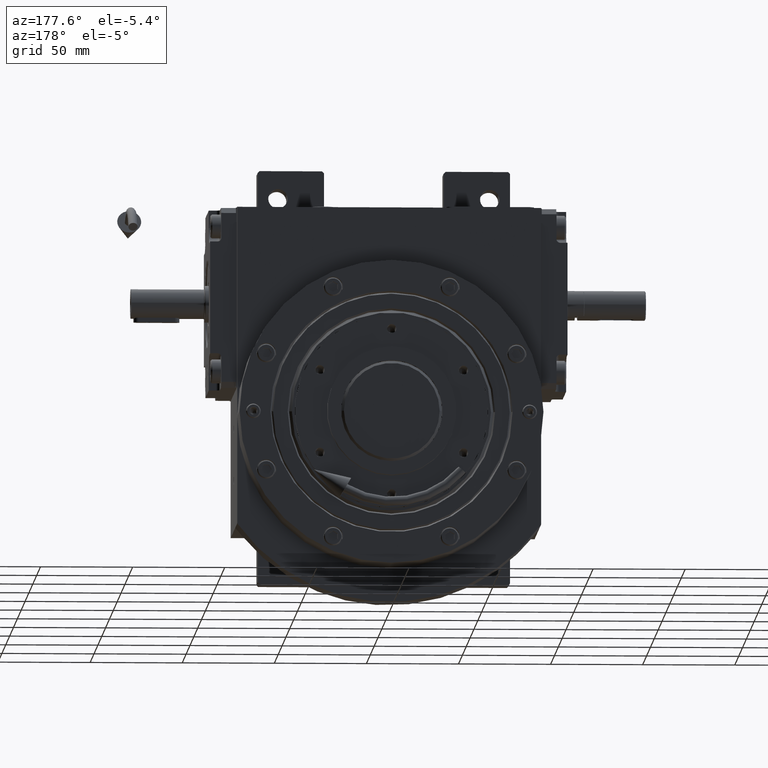
[diagram: clean part render]
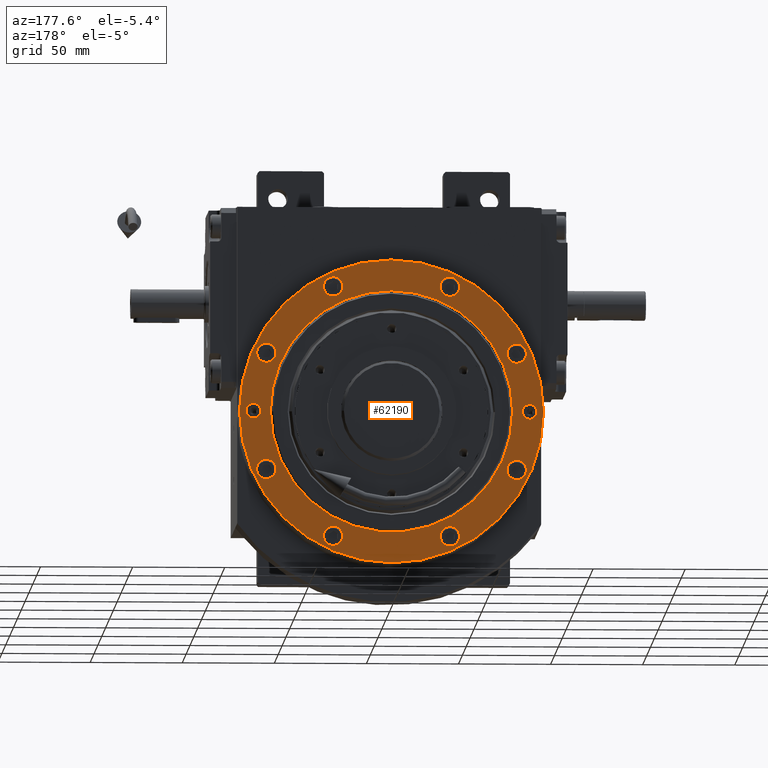
[diagram: same view with one face highlighted and labeled with its STEP entity id]
A machine part, auxiliary view. The second image highlights one B-rep face of the part: STEP entity #62190.
In plain terms, the highlighted planar face has unit normal (0, 1, 0).
Its self-contained STEP definition (entity closure, byte-faithful):
#571 = EDGE_CURVE ( 'NONE', #4153, #9652, #63248, .T. ) ;
#1590 = DIRECTION ( 'NONE',  ( 1.000000000000000000, 0.000000000000000000, 0.000000000000000000 ) ) ;
#1796 = AXIS2_PLACEMENT_3D ( 'NONE', #22581, #27122, #13189 ) ;
#1919 = VERTEX_POINT ( 'NONE', #28391 ) ;
#1932 = AXIS2_PLACEMENT_3D ( 'NONE', #59533, #20772, #59864 ) ;
#2515 = CARTESIAN_POINT ( 'NONE',  ( 2.060573933704000491E-13, 4.440892098501000776E-13, 30.49999232216999445 ) ) ;
#2585 = CARTESIAN_POINT ( 'NONE',  ( -67.97308402775001923, 31.69636963055000223, 30.49999999999999289 ) ) ;
#3320 = CARTESIAN_POINT ( 'NONE',  ( 78.99999999999998579, 0.000000000000000000, 30.49999999999999289 ) ) ;
#3531 = ORIENTED_EDGE ( 'NONE', *, *, #48494, .F. ) ;
#3731 = EDGE_CURVE ( 'NONE', #60343, #55515, #24535, .T. ) ;
#3758 = AXIS2_PLACEMENT_3D ( 'NONE', #53569, #24162, #47776 ) ;
#4153 = VERTEX_POINT ( 'NONE', #3320 ) ;
#4349 = CIRCLE ( 'NONE', #5359, 65.72795184286999870 ) ;
#4367 = DIRECTION ( 'NONE',  ( -1.000000000000000000, 0.000000000000000000, 0.000000000000000000 ) ) ;
#4375 = CARTESIAN_POINT ( 'NONE',  ( 67.97308402774999081, -31.69636963055000223, 30.49999999999999289 ) ) ;
#4450 = EDGE_CURVE ( 'NONE', #35947, #5916, #28706, .T. ) ;
#4574 = VERTEX_POINT ( 'NONE', #21819 ) ;
#4586 = VERTEX_POINT ( 'NONE', #38824 ) ;
#4595 = EDGE_LOOP ( 'NONE', ( #10971, #3531 ) ) ;
#4846 = VERTEX_POINT ( 'NONE', #14425 ) ;
#5187 = FACE_OUTER_BOUND ( 'NONE', #41291, .T. ) ;
#5359 = AXIS2_PLACEMENT_3D ( 'NONE', #2515, #6736, #37172 ) ;
#5802 = CARTESIAN_POINT ( 'NONE',  ( -71.00000000000001421, 1.521575012437008940E-14, 30.49999999999999289 ) ) ;
#5916 = VERTEX_POINT ( 'NONE', #32955 ) ;
#6314 = EDGE_LOOP ( 'NONE', ( #10700, #24241 ) ) ;
#6463 = DIRECTION ( 'NONE',  ( -1.000000000000000000, 0.000000000000000000, 0.000000000000000000 ) ) ;
#6736 = DIRECTION ( 'NONE',  ( 0.000000000000000000, 0.000000000000000000, -1.000000000000000000 ) ) ;
#7018 = DIRECTION ( 'NONE',  ( 1.000000000000000000, 0.000000000000000000, 0.000000000000000000 ) ) ;
#7071 = EDGE_CURVE ( 'NONE', #38816, #4846, #4349, .T. ) ;
#7467 = DIRECTION ( 'NONE',  ( 0.000000000000000000, 0.000000000000000000, 1.000000000000000000 ) ) ;
#8049 = CIRCLE ( 'NONE', #61723, 5.250000000000004441 ) ;
#8883 = DIRECTION ( 'NONE',  ( 0.000000000000000000, 0.000000000000000000, 1.000000000000000000 ) ) ;
#9064 = AXIS2_PLACEMENT_3D ( 'NONE', #11022, #41745, #30772 ) ;
#9546 = ORIENTED_EDGE ( 'NONE', *, *, #32012, .F. ) ;
#9652 = VERTEX_POINT ( 'NONE', #37978 ) ;
#9702 = AXIS2_PLACEMENT_3D ( 'NONE', #21580, #35188, #50978 ) ;
#9800 = CIRCLE ( 'NONE', #56249, 65.72795184286999870 ) ;
#9981 = CIRCLE ( 'NONE', #3758, 5.249999999999997335 ) ;
#10700 = ORIENTED_EDGE ( 'NONE', *, *, #18929, .F. ) ;
#10861 = ORIENTED_EDGE ( 'NONE', *, *, #58784, .T. ) ;
#10896 = AXIS2_PLACEMENT_3D ( 'NONE', #50110, #54974, #1590 ) ;
#10971 = ORIENTED_EDGE ( 'NONE', *, *, #44783, .F. ) ;
#11022 = CARTESIAN_POINT ( 'NONE',  ( -75.00000000000001421, 1.423604886319003288E-14, 30.49999999999999289 ) ) ;
#11082 = ORIENTED_EDGE ( 'NONE', *, *, #31995, .T. ) ;
#11084 = AXIS2_PLACEMENT_3D ( 'NONE', #53503, #8883, #27692 ) ;
#11141 = CIRCLE ( 'NONE', #9064, 4.000000000000003553 ) ;
#11604 = VERTEX_POINT ( 'NONE', #35209 ) ;
#11732 = VERTEX_POINT ( 'NONE', #34889 ) ;
#12063 = DIRECTION ( 'NONE',  ( 0.000000000000000000, 0.000000000000000000, 1.000000000000000000 ) ) ;
#12299 = AXIS2_PLACEMENT_3D ( 'NONE', #2585, #62074, #61430 ) ;
#12617 = CARTESIAN_POINT ( 'NONE',  ( 67.97308402774999081, -31.69636963055000223, 30.49999999999999289 ) ) ;
#12978 = ORIENTED_EDGE ( 'NONE', *, *, #29495, .T. ) ;
#13011 = CARTESIAN_POINT ( 'NONE',  ( 65.72795184286999870, 1.310051197827999923E-14, 30.49999232216999445 ) ) ;
#13189 = DIRECTION ( 'NONE',  ( -1.000000000000000000, 0.000000000000000000, 0.000000000000000000 ) ) ;
#13368 = VERTEX_POINT ( 'NONE', #62691 ) ;
#13506 = CARTESIAN_POINT ( 'NONE',  ( 36.94636963055000223, 67.97308402775000502, 30.49999999999999289 ) ) ;
#13550 = ORIENTED_EDGE ( 'NONE', *, *, #4450, .F. ) ;
#13643 = CARTESIAN_POINT ( 'NONE',  ( 31.69636963055000223, 67.97308402775000502, 30.49999999999999289 ) ) ;
#13800 = CIRCLE ( 'NONE', #51998, 5.250000000000004441 ) ;
#14072 = DIRECTION ( 'NONE',  ( 1.000000000000000000, 0.000000000000000000, 0.000000000000000000 ) ) ;
#14425 = CARTESIAN_POINT ( 'NONE',  ( -65.72795184286999870, 0.000000000000000000, 30.49999232216999445 ) ) ;
#14606 = FACE_BOUND ( 'NONE', #61156, .T. ) ;
#15225 = FACE_BOUND ( 'NONE', #26595, .T. ) ;
#15844 = EDGE_CURVE ( 'NONE', #4574, #11604, #47202, .T. ) ;
#16118 = EDGE_CURVE ( 'NONE', #27712, #13368, #11141, .T. ) ;
#16428 = CARTESIAN_POINT ( 'NONE',  ( 2.060573933704000491E-13, -65.72795184287261350, 30.49999232216999445 ) ) ;
#16825 = DIRECTION ( 'NONE',  ( -1.000000000000000000, 0.000000000000000000, 0.000000000000000000 ) ) ;
#17142 = CARTESIAN_POINT ( 'NONE',  ( -31.69636963055000223, -67.97308402775000502, 30.49999999999999289 ) ) ;
#17309 = EDGE_CURVE ( 'NONE', #18433, #55414, #53372, .T. ) ;
#17496 = ORIENTED_EDGE ( 'NONE', *, *, #15844, .F. ) ;
#18433 = VERTEX_POINT ( 'NONE', #42248 ) ;
#18819 = FACE_BOUND ( 'NONE', #62537, .T. ) ;
#18929 = EDGE_CURVE ( 'NONE', #1919, #33132, #54611, .T. ) ;
#18964 = CARTESIAN_POINT ( 'NONE',  ( -82.50000000000001421, 2.020633851199993078E-14, 30.49999999999999289 ) ) ;
#19123 = FACE_BOUND ( 'NONE', #46609, .T. ) ;
#19325 = AXIS2_PLACEMENT_3D ( 'NONE', #42769, #42467, #62150 ) ;
#19521 = EDGE_CURVE ( 'NONE', #33132, #1919, #26680, .T. ) ;
#19931 = AXIS2_PLACEMENT_3D ( 'NONE', #29598, #24754, #33506 ) ;
#20069 = FACE_BOUND ( 'NONE', #52133, .T. ) ;
#20210 = CARTESIAN_POINT ( 'NONE',  ( 82.49999999999998579, -1.010300241903009221E-14, 30.49999999999999289 ) ) ;
#20321 = CARTESIAN_POINT ( 'NONE',  ( -75.00000000000001421, 1.423604886319003288E-14, 30.49999999999999289 ) ) ;
#20772 = DIRECTION ( 'NONE',  ( 0.000000000000000000, 0.000000000000000000, 1.000000000000000000 ) ) ;
#21580 = CARTESIAN_POINT ( 'NONE',  ( 74.99999999999998579, 0.000000000000000000, 30.49999999999999289 ) ) ;
#21633 = ORIENTED_EDGE ( 'NONE', *, *, #7071, .T. ) ;
#21651 = ORIENTED_EDGE ( 'NONE', *, *, #29120, .F. ) ;
#21819 = CARTESIAN_POINT ( 'NONE',  ( -26.44636963054999867, -67.97308402775000502, 30.49999999999999289 ) ) ;
#22295 = CARTESIAN_POINT ( 'NONE',  ( -73.22308402774999081, -31.69636963055000223, 30.49999999999999289 ) ) ;
#22581 = CARTESIAN_POINT ( 'NONE',  ( -67.97308402775001923, 31.69636963055000223, 30.49999999999999289 ) ) ;
#23581 = AXIS2_PLACEMENT_3D ( 'NONE', #33510, #28660, #4367 ) ;
#23658 = DIRECTION ( 'NONE',  ( 0.000000000000000000, 0.000000000000000000, 1.000000000000000000 ) ) ;
#23872 = CIRCLE ( 'NONE', #28130, 5.250000000000004441 ) ;
#23887 = CARTESIAN_POINT ( 'NONE',  ( -67.97308402775001923, -31.69636963055000223, 30.49999999999999289 ) ) ;
#24162 = DIRECTION ( 'NONE',  ( 0.000000000000000000, 0.000000000000000000, 1.000000000000000000 ) ) ;
#24241 = ORIENTED_EDGE ( 'NONE', *, *, #19521, .F. ) ;
#24535 = CIRCLE ( 'NONE', #11084, 82.50000000000000000 ) ;
#24754 = DIRECTION ( 'NONE',  ( 0.000000000000000000, 0.000000000000000000, -1.000000000000000000 ) ) ;
#24942 = FACE_BOUND ( 'NONE', #4595, .T. ) ;
#25053 = ORIENTED_EDGE ( 'NONE', *, *, #51846, .F. ) ;
#25215 = EDGE_LOOP ( 'NONE', ( #52869, #10861 ) ) ;
#25220 = EDGE_CURVE ( 'NONE', #37267, #43129, #8049, .T. ) ;
#25505 = CARTESIAN_POINT ( 'NONE',  ( 2.060573933704000491E-13, 4.440892098501000776E-13, 30.49999232216999445 ) ) ;
#26074 = EDGE_CURVE ( 'NONE', #46502, #40876, #58639, .T. ) ;
#26137 = CARTESIAN_POINT ( 'NONE',  ( 0.000000000000000000, 0.000000000000000000, 30.49999999999999289 ) ) ;
#26458 = DIRECTION ( 'NONE',  ( 0.000000000000000000, 0.000000000000000000, -1.000000000000000000 ) ) ;
#26575 = AXIS2_PLACEMENT_3D ( 'NONE', #58660, #44441, #14072 ) ;
#26595 = EDGE_LOOP ( 'NONE', ( #47922, #9546 ) ) ;
#26680 = CIRCLE ( 'NONE', #23581, 5.249999999999997335 ) ;
#27122 = DIRECTION ( 'NONE',  ( 0.000000000000000000, 0.000000000000000000, 1.000000000000000000 ) ) ;
#27692 = DIRECTION ( 'NONE',  ( -1.000000000000000000, 0.000000000000000000, 0.000000000000000000 ) ) ;
#27712 = VERTEX_POINT ( 'NONE', #5802 ) ;
#28130 = AXIS2_PLACEMENT_3D ( 'NONE', #4375, #43828, #63519 ) ;
#28135 = DIRECTION ( 'NONE',  ( -1.000000000000000000, 0.000000000000000000, 0.000000000000000000 ) ) ;
#28181 = CARTESIAN_POINT ( 'NONE',  ( 31.69636963055000223, -67.97308402775000502, 30.49999999999999289 ) ) ;
#28391 = CARTESIAN_POINT ( 'NONE',  ( -26.44636963054999867, 67.97308402775000502, 30.49999999999999289 ) ) ;
#28660 = DIRECTION ( 'NONE',  ( 0.000000000000000000, 0.000000000000000000, 1.000000000000000000 ) ) ;
#28706 = CIRCLE ( 'NONE', #42865, 5.250000000000000888 ) ;
#29037 = CIRCLE ( 'NONE', #37311, 4.000000000000003553 ) ;
#29120 = EDGE_CURVE ( 'NONE', #11604, #4574, #61995, .T. ) ;
#29370 = DIRECTION ( 'NONE',  ( 1.000000000000000000, 0.000000000000000000, 0.000000000000000000 ) ) ;
#29495 = EDGE_CURVE ( 'NONE', #55515, #60343, #35221, .T. ) ;
#29598 = CARTESIAN_POINT ( 'NONE',  ( 74.99999999999998579, 0.000000000000000000, 30.49999999999999289 ) ) ;
#29719 = DIRECTION ( 'NONE',  ( 1.000000000000000000, 0.000000000000000000, 0.000000000000000000 ) ) ;
#30117 = FACE_BOUND ( 'NONE', #25215, .T. ) ;
#30479 = ORIENTED_EDGE ( 'NONE', *, *, #16118, .T. ) ;
#30700 = AXIS2_PLACEMENT_3D ( 'NONE', #40912, #45437, #54799 ) ;
#30772 = DIRECTION ( 'NONE',  ( 1.000000000000000000, 0.000000000000000000, 0.000000000000000000 ) ) ;
#31394 = DIRECTION ( 'NONE',  ( 0.000000000000000000, 0.000000000000000000, 1.000000000000000000 ) ) ;
#31916 = CIRCLE ( 'NONE', #12299, 5.250000000000004441 ) ;
#31995 = EDGE_CURVE ( 'NONE', #48316, #38816, #9800, .T. ) ;
#32012 = EDGE_CURVE ( 'NONE', #55414, #18433, #53152, .T. ) ;
#32238 = VERTEX_POINT ( 'NONE', #13506 ) ;
#32351 = DIRECTION ( 'NONE',  ( 0.000000000000000000, 0.000000000000000000, 1.000000000000000000 ) ) ;
#32464 = ORIENTED_EDGE ( 'NONE', *, *, #62397, .F. ) ;
#32955 = CARTESIAN_POINT ( 'NONE',  ( 36.94636963055000223, -67.97308402775000502, 30.49999999999999289 ) ) ;
#33132 = VERTEX_POINT ( 'NONE', #52703 ) ;
#33154 = CIRCLE ( 'NONE', #41410, 5.250000000000000888 ) ;
#33506 = DIRECTION ( 'NONE',  ( 1.000000000000000000, 0.000000000000000000, 0.000000000000000000 ) ) ;
#33510 = CARTESIAN_POINT ( 'NONE',  ( -31.69636963055000223, 67.97308402775000502, 30.49999999999999289 ) ) ;
#33692 = EDGE_CURVE ( 'NONE', #5916, #35947, #9981, .T. ) ;
#33988 = EDGE_LOOP ( 'NONE', ( #37883, #13550 ) ) ;
#34299 = EDGE_LOOP ( 'NONE', ( #48809, #32464 ) ) ;
#34889 = CARTESIAN_POINT ( 'NONE',  ( 62.72308402774998370, -31.69636963055000223, 30.49999999999999289 ) ) ;
#34971 = FACE_BOUND ( 'NONE', #40044, .T. ) ;
#35188 = DIRECTION ( 'NONE',  ( 0.000000000000000000, 0.000000000000000000, -1.000000000000000000 ) ) ;
#35209 = CARTESIAN_POINT ( 'NONE',  ( -36.94636963055000223, -67.97308402775000502, 30.49999999999999289 ) ) ;
#35221 = CIRCLE ( 'NONE', #44518, 82.50000000000000000 ) ;
#35711 = CIRCLE ( 'NONE', #40880, 5.250000000000004441 ) ;
#35947 = VERTEX_POINT ( 'NONE', #47165 ) ;
#37172 = DIRECTION ( 'NONE',  ( 1.000000000000000000, 0.000000000000000000, 0.000000000000000000 ) ) ;
#37267 = VERTEX_POINT ( 'NONE', #22295 ) ;
#37269 = DIRECTION ( 'NONE',  ( 1.000000000000000000, 0.000000000000000000, 0.000000000000000000 ) ) ;
#37311 = AXIS2_PLACEMENT_3D ( 'NONE', #20321, #26458, #40057 ) ;
#37833 = DIRECTION ( 'NONE',  ( 0.000000000000000000, 0.000000000000000000, 1.000000000000000000 ) ) ;
#37883 = ORIENTED_EDGE ( 'NONE', *, *, #33692, .F. ) ;
#37978 = CARTESIAN_POINT ( 'NONE',  ( 70.99999999999998579, 0.000000000000000000, 30.49999999999999289 ) ) ;
#38202 = DIRECTION ( 'NONE',  ( -1.000000000000000000, 0.000000000000000000, 0.000000000000000000 ) ) ;
#38542 = PLANE ( 'NONE',  #10896 ) ;
#38816 = VERTEX_POINT ( 'NONE', #16428 ) ;
#38824 = CARTESIAN_POINT ( 'NONE',  ( 26.44636963054999867, 67.97308402775000502, 30.49999999999999289 ) ) ;
#38851 = FACE_BOUND ( 'NONE', #33988, .T. ) ;
#38992 = ORIENTED_EDGE ( 'NONE', *, *, #3731, .T. ) ;
#39351 = ORIENTED_EDGE ( 'NONE', *, *, #26074, .F. ) ;
#40044 = EDGE_LOOP ( 'NONE', ( #17496, #21651 ) ) ;
#40057 = DIRECTION ( 'NONE',  ( -1.000000000000000000, 0.000000000000000000, 0.000000000000000000 ) ) ;
#40876 = VERTEX_POINT ( 'NONE', #47875 ) ;
#40880 = AXIS2_PLACEMENT_3D ( 'NONE', #12617, #37833, #28135 ) ;
#40912 = CARTESIAN_POINT ( 'NONE',  ( 1.918465386552000143E-13, 1.438849039913999161E-13, 30.49999232216999445 ) ) ;
#41291 = EDGE_LOOP ( 'NONE', ( #38992, #12978 ) ) ;
#41410 = AXIS2_PLACEMENT_3D ( 'NONE', #60456, #31394, #6463 ) ;
#41514 = CARTESIAN_POINT ( 'NONE',  ( -67.97308402775001923, -31.69636963055000223, 30.49999999999999289 ) ) ;
#41745 = DIRECTION ( 'NONE',  ( 0.000000000000000000, 0.000000000000000000, -1.000000000000000000 ) ) ;
#42248 = CARTESIAN_POINT ( 'NONE',  ( 73.22308402774999081, 31.69636963055000223, 30.49999999999999289 ) ) ;
#42249 = AXIS2_PLACEMENT_3D ( 'NONE', #13643, #23658, #37269 ) ;
#42467 = DIRECTION ( 'NONE',  ( 0.000000000000000000, 0.000000000000000000, 1.000000000000000000 ) ) ;
#42769 = CARTESIAN_POINT ( 'NONE',  ( -31.69636963055000223, -67.97308402775000502, 30.49999999999999289 ) ) ;
#42865 = AXIS2_PLACEMENT_3D ( 'NONE', #28181, #7467, #38202 ) ;
#43129 = VERTEX_POINT ( 'NONE', #45745 ) ;
#43164 = EDGE_CURVE ( 'NONE', #4846, #48316, #52380, .T. ) ;
#43828 = DIRECTION ( 'NONE',  ( 0.000000000000000000, 0.000000000000000000, 1.000000000000000000 ) ) ;
#44299 = CIRCLE ( 'NONE', #42249, 5.249999999999997335 ) ;
#44441 = DIRECTION ( 'NONE',  ( 0.000000000000000000, 0.000000000000000000, 1.000000000000000000 ) ) ;
#44469 = AXIS2_PLACEMENT_3D ( 'NONE', #17142, #32351, #16825 ) ;
#44518 = AXIS2_PLACEMENT_3D ( 'NONE', #26137, #45835, #7018 ) ;
#44647 = FACE_BOUND ( 'NONE', #6314, .T. ) ;
#44783 = EDGE_CURVE ( 'NONE', #32238, #4586, #44299, .T. ) ;
#45437 = DIRECTION ( 'NONE',  ( 0.000000000000000000, 0.000000000000000000, -1.000000000000000000 ) ) ;
#45745 = CARTESIAN_POINT ( 'NONE',  ( -62.72308402775001213, -31.69636963055000223, 30.49999999999999289 ) ) ;
#45835 = DIRECTION ( 'NONE',  ( 0.000000000000000000, 0.000000000000000000, 1.000000000000000000 ) ) ;
#46502 = VERTEX_POINT ( 'NONE', #51408 ) ;
#46609 = EDGE_LOOP ( 'NONE', ( #30479, #63570 ) ) ;
#47165 = CARTESIAN_POINT ( 'NONE',  ( 26.44636963054999867, -67.97308402775000502, 30.49999999999999289 ) ) ;
#47202 = CIRCLE ( 'NONE', #19325, 5.250000000000000888 ) ;
#47776 = DIRECTION ( 'NONE',  ( 1.000000000000000000, 0.000000000000000000, 0.000000000000000000 ) ) ;
#47875 = CARTESIAN_POINT ( 'NONE',  ( -62.72308402775001213, 31.69636963055000223, 30.49999999999999289 ) ) ;
#47922 = ORIENTED_EDGE ( 'NONE', *, *, #17309, .F. ) ;
#48316 = VERTEX_POINT ( 'NONE', #13011 ) ;
#48494 = EDGE_CURVE ( 'NONE', #4586, #32238, #33154, .T. ) ;
#48809 = ORIENTED_EDGE ( 'NONE', *, *, #55399, .F. ) ;
#48882 = EDGE_CURVE ( 'NONE', #13368, #27712, #29037, .T. ) ;
#49700 = DIRECTION ( 'NONE',  ( 0.000000000000000000, 0.000000000000000000, 1.000000000000000000 ) ) ;
#49737 = DIRECTION ( 'NONE',  ( -1.000000000000000000, 0.000000000000000000, 0.000000000000000000 ) ) ;
#50110 = CARTESIAN_POINT ( 'NONE',  ( 0.000000000000000000, 0.000000000000000000, 30.49999999999999289 ) ) ;
#50865 = CARTESIAN_POINT ( 'NONE',  ( 73.22308402774999081, -31.69636963055000223, 30.49999999999999289 ) ) ;
#50971 = CIRCLE ( 'NONE', #9702, 4.000000000000003553 ) ;
#50978 = DIRECTION ( 'NONE',  ( -1.000000000000000000, 0.000000000000000000, 0.000000000000000000 ) ) ;
#51177 = VERTEX_POINT ( 'NONE', #50865 ) ;
#51408 = CARTESIAN_POINT ( 'NONE',  ( -73.22308402774999081, 31.69636963055000223, 30.49999999999999289 ) ) ;
#51505 = DIRECTION ( 'NONE',  ( -1.000000000000000000, 0.000000000000000000, 0.000000000000000000 ) ) ;
#51846 = EDGE_CURVE ( 'NONE', #40876, #46502, #31916, .T. ) ;
#51998 = AXIS2_PLACEMENT_3D ( 'NONE', #23887, #49700, #29370 ) ;
#52133 = EDGE_LOOP ( 'NONE', ( #25053, #39351 ) ) ;
#52380 = CIRCLE ( 'NONE', #30700, 65.72795184286999870 ) ;
#52703 = CARTESIAN_POINT ( 'NONE',  ( -36.94636963055000223, 67.97308402775000502, 30.49999999999999289 ) ) ;
#52869 = ORIENTED_EDGE ( 'NONE', *, *, #571, .T. ) ;
#53152 = CIRCLE ( 'NONE', #61396, 5.250000000000004441 ) ;
#53372 = CIRCLE ( 'NONE', #26575, 5.250000000000004441 ) ;
#53503 = CARTESIAN_POINT ( 'NONE',  ( 0.000000000000000000, 0.000000000000000000, 30.49999999999999289 ) ) ;
#53569 = CARTESIAN_POINT ( 'NONE',  ( 31.69636963055000223, -67.97308402775000502, 30.49999999999999289 ) ) ;
#53703 = ORIENTED_EDGE ( 'NONE', *, *, #43164, .T. ) ;
#54584 = CARTESIAN_POINT ( 'NONE',  ( 67.97308402774999081, 31.69636963055000223, 30.49999999999999289 ) ) ;
#54611 = CIRCLE ( 'NONE', #1932, 5.250000000000000888 ) ;
#54655 = FACE_BOUND ( 'NONE', #34299, .T. ) ;
#54799 = DIRECTION ( 'NONE',  ( -1.000000000000000000, 0.000000000000000000, 0.000000000000000000 ) ) ;
#54906 = DIRECTION ( 'NONE',  ( 0.000000000000000000, 0.000000000000000000, 1.000000000000000000 ) ) ;
#54974 = DIRECTION ( 'NONE',  ( 0.000000000000000000, 0.000000000000000000, 1.000000000000000000 ) ) ;
#55136 = ORIENTED_EDGE ( 'NONE', *, *, #25220, .F. ) ;
#55399 = EDGE_CURVE ( 'NONE', #51177, #11732, #23872, .T. ) ;
#55414 = VERTEX_POINT ( 'NONE', #58068 ) ;
#55515 = VERTEX_POINT ( 'NONE', #20210 ) ;
#56249 = AXIS2_PLACEMENT_3D ( 'NONE', #25505, #59114, #29719 ) ;
#57645 = ORIENTED_EDGE ( 'NONE', *, *, #58493, .F. ) ;
#58068 = CARTESIAN_POINT ( 'NONE',  ( 62.72308402774998370, 31.69636963055000223, 30.49999999999999289 ) ) ;
#58493 = EDGE_CURVE ( 'NONE', #43129, #37267, #13800, .T. ) ;
#58639 = CIRCLE ( 'NONE', #1796, 5.250000000000004441 ) ;
#58660 = CARTESIAN_POINT ( 'NONE',  ( 67.97308402774999081, 31.69636963055000223, 30.49999999999999289 ) ) ;
#58784 = EDGE_CURVE ( 'NONE', #9652, #4153, #50971, .T. ) ;
#59114 = DIRECTION ( 'NONE',  ( 0.000000000000000000, 0.000000000000000000, -1.000000000000000000 ) ) ;
#59533 = CARTESIAN_POINT ( 'NONE',  ( -31.69636963055000223, 67.97308402775000502, 30.49999999999999289 ) ) ;
#59864 = DIRECTION ( 'NONE',  ( 1.000000000000000000, 0.000000000000000000, 0.000000000000000000 ) ) ;
#60343 = VERTEX_POINT ( 'NONE', #18964 ) ;
#60456 = CARTESIAN_POINT ( 'NONE',  ( 31.69636963055000223, 67.97308402775000502, 30.49999999999999289 ) ) ;
#61156 = EDGE_LOOP ( 'NONE', ( #57645, #55136 ) ) ;
#61396 = AXIS2_PLACEMENT_3D ( 'NONE', #54584, #54906, #49737 ) ;
#61430 = DIRECTION ( 'NONE',  ( 1.000000000000000000, 0.000000000000000000, 0.000000000000000000 ) ) ;
#61723 = AXIS2_PLACEMENT_3D ( 'NONE', #41514, #12063, #51505 ) ;
#61995 = CIRCLE ( 'NONE', #44469, 5.249999999999997335 ) ;
#62074 = DIRECTION ( 'NONE',  ( 0.000000000000000000, 0.000000000000000000, 1.000000000000000000 ) ) ;
#62150 = DIRECTION ( 'NONE',  ( 1.000000000000000000, 0.000000000000000000, 0.000000000000000000 ) ) ;
#62190 = ADVANCED_FACE ( 'NONE', ( #5187, #30117, #19123, #15225, #24942, #44647, #20069, #14606, #34971, #38851, #54655, #18819 ), #38542, .T. ) ;
#62397 = EDGE_CURVE ( 'NONE', #11732, #51177, #35711, .T. ) ;
#62537 = EDGE_LOOP ( 'NONE', ( #53703, #11082, #21633 ) ) ;
#62691 = CARTESIAN_POINT ( 'NONE',  ( -79.00000000000001421, 1.374620632166009432E-14, 30.49999999999999289 ) ) ;
#63248 = CIRCLE ( 'NONE', #19931, 4.000000000000003553 ) ;
#63519 = DIRECTION ( 'NONE',  ( 1.000000000000000000, 0.000000000000000000, 0.000000000000000000 ) ) ;
#63570 = ORIENTED_EDGE ( 'NONE', *, *, #48882, .T. ) ;